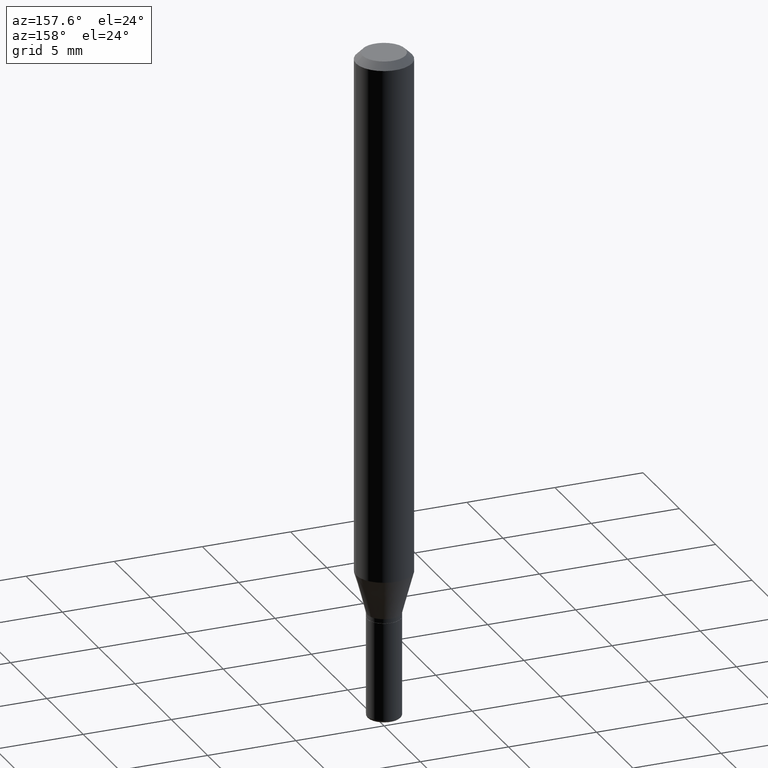
[diagram: clean part render]
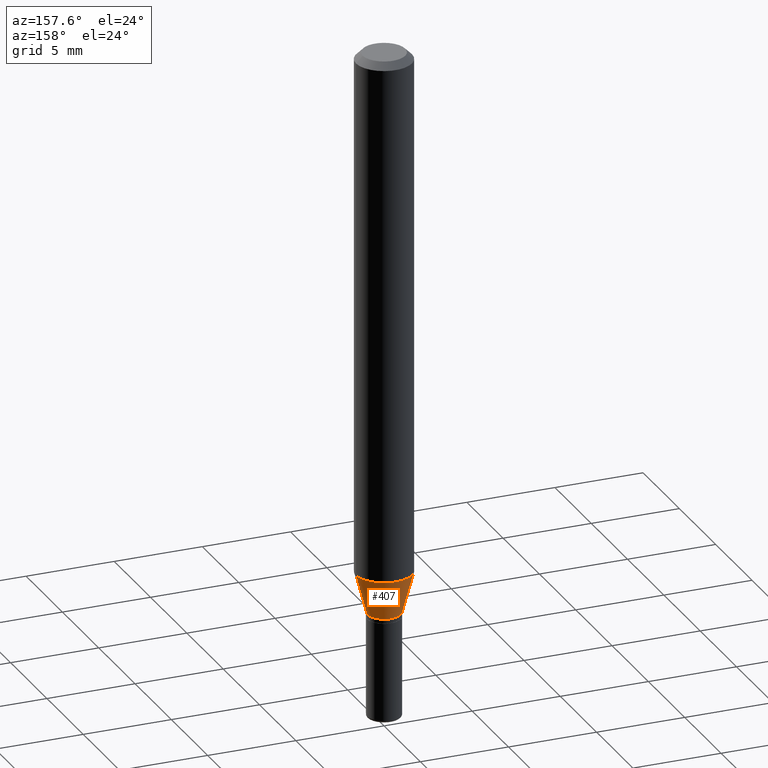
[diagram: same view with one face highlighted and labeled with its STEP entity id]
A machine part, auxiliary view. The second image highlights one B-rep face of the part: STEP entity #407.
In plain terms, the highlighted conical surface has half-angle 15 deg.
Its self-contained STEP definition (entity closure, byte-faithful):
#11 = LINE ( 'NONE', #449, #231 ) ;
#18 = ORIENTED_EDGE ( 'NONE', *, *, #174, .F. ) ;
#31 = CARTESIAN_POINT ( 'NONE',  ( 2.865352693999005712E-29, -4.090964249880549639E-15, -1.171698729810778605 ) ) ;
#32 = CARTESIAN_POINT ( 'NONE',  ( -0.06250000000000000000, -3.646875040030487022E-15, -1.171698729810778605 ) ) ;
#46 = CARTESIAN_POINT ( 'NONE',  ( 3.093518039824198624E-29, -4.416723893636579945E-15, -1.265000000000000346 ) ) ;
#80 = CARTESIAN_POINT ( 'NONE',  ( 0.06250000000000000000, -4.527399417235941308E-15, -1.171698729810778605 ) ) ;
#101 = CARTESIAN_POINT ( 'NONE',  ( 0.03750000000000006800, -4.678584994049814947E-15, -1.265000000000000346 ) ) ;
#128 = DIRECTION ( 'NONE',  ( 1.000000000000000000, -6.982962677686255667E-15, 0.000000000000000000 ) ) ;
#153 = DIRECTION ( 'NONE',  ( -2.445468806185136597E-29, 3.491481338843145583E-15, 1.000000000000000000 ) ) ;
#162 = DIRECTION ( 'NONE',  ( 1.000000000000000000, -6.982962677686262766E-15, 0.000000000000000000 ) ) ;
#165 = DIRECTION ( 'NONE',  ( 1.000000000000000000, -6.982962677686255667E-15, 0.000000000000000000 ) ) ;
#171 = EDGE_CURVE ( 'NONE', #355, #314, #462, .T. ) ;
#174 = EDGE_CURVE ( 'NONE', #272, #355, #319, .T. ) ;
#183 = VECTOR ( 'NONE', #312, 39.37007874015748143 ) ;
#227 = CONICAL_SURFACE ( 'NONE', #502, 0.03750000000000006800, 0.2617993877991490748 ) ;
#231 = VECTOR ( 'NONE', #411, 39.37007874015748143 ) ;
#239 = VERTEX_POINT ( 'NONE', #437 ) ;
#263 = EDGE_LOOP ( 'NONE', ( #436, #341, #389, #18 ) ) ;
#272 = VERTEX_POINT ( 'NONE', #101 ) ;
#284 = CARTESIAN_POINT ( 'NONE',  ( 0.03750000000000006800, -4.678584994049814947E-15, -1.265000000000000346 ) ) ;
#288 = CARTESIAN_POINT ( 'NONE',  ( 3.093518039824198624E-29, -4.416723893636579945E-15, -1.265000000000000346 ) ) ;
#302 = CIRCLE ( 'NONE', #505, 0.03750000000000006800 ) ;
#312 = DIRECTION ( 'NONE',  ( 0.2588190451025204064, 1.565188264969629659E-15, 0.9659258262890684232 ) ) ;
#314 = VERTEX_POINT ( 'NONE', #32 ) ;
#319 = LINE ( 'NONE', #284, #183 ) ;
#325 = FACE_OUTER_BOUND ( 'NONE', #263, .T. ) ;
#329 = DIRECTION ( 'NONE',  ( -2.445468806185136597E-29, 3.491481338843145583E-15, 1.000000000000000000 ) ) ;
#341 = ORIENTED_EDGE ( 'NONE', *, *, #416, .T. ) ;
#355 = VERTEX_POINT ( 'NONE', #80 ) ;
#365 = DIRECTION ( 'NONE',  ( -2.445468806185136597E-29, 3.491481338843145583E-15, 1.000000000000000000 ) ) ;
#369 = AXIS2_PLACEMENT_3D ( 'NONE', #31, #153, #162 ) ;
#389 = ORIENTED_EDGE ( 'NONE', *, *, #171, .F. ) ;
#405 = EDGE_CURVE ( 'NONE', #272, #239, #302, .T. ) ;
#407 = ADVANCED_FACE ( 'NONE', ( #325 ), #227, .T. ) ;
#411 = DIRECTION ( 'NONE',  ( -0.2588190451025204064, 5.211531920934543942E-15, 0.9659258262890684232 ) ) ;
#416 = EDGE_CURVE ( 'NONE', #239, #314, #11, .T. ) ;
#436 = ORIENTED_EDGE ( 'NONE', *, *, #405, .T. ) ;
#437 = CARTESIAN_POINT ( 'NONE',  ( -0.03750000000000006800, -3.898572703878514383E-15, -1.265000000000000346 ) ) ;
#449 = CARTESIAN_POINT ( 'NONE',  ( -0.03750000000000006800, -4.150270367726541744E-15, -1.265000000000000346 ) ) ;
#462 = CIRCLE ( 'NONE', #369, 0.06250000000000000000 ) ;
#502 = AXIS2_PLACEMENT_3D ( 'NONE', #288, #365, #128 ) ;
#505 = AXIS2_PLACEMENT_3D ( 'NONE', #46, #329, #165 ) ;